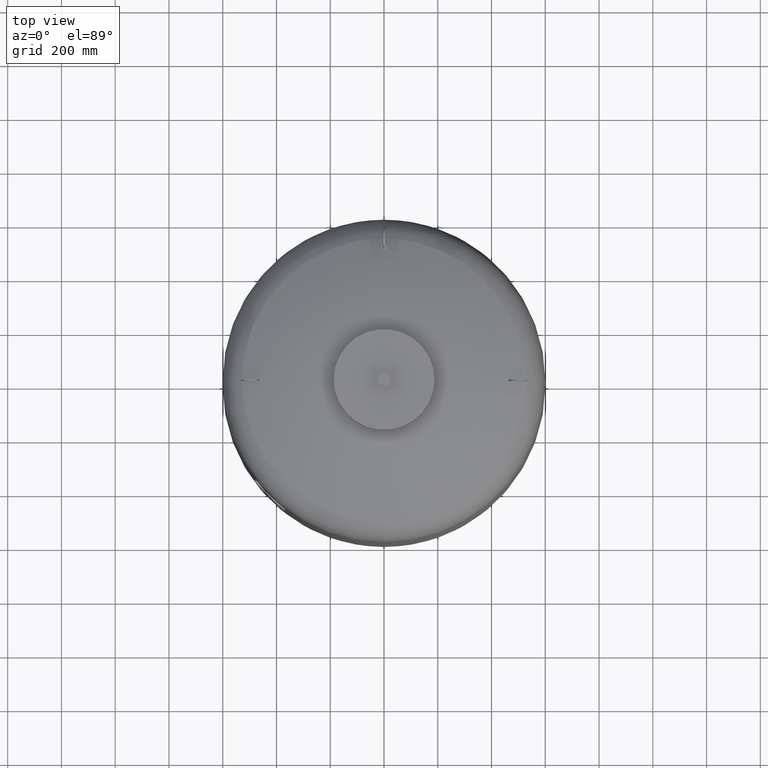
[diagram: clean part render]
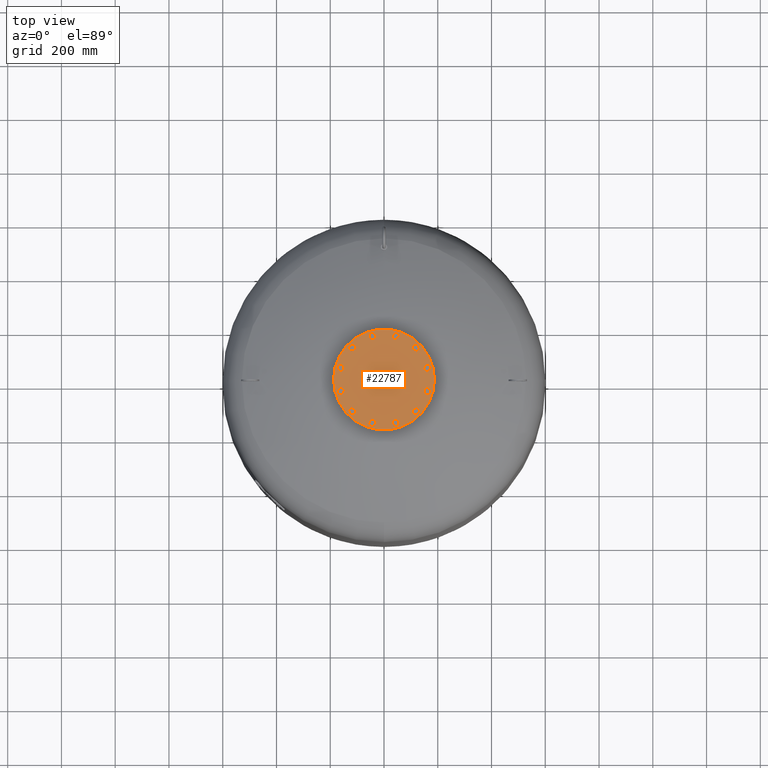
[diagram: same view with one face highlighted and labeled with its STEP entity id]
A machine part, top view. The second image highlights one B-rep face of the part: STEP entity #22787.
In plain terms, the highlighted planar face has unit normal (0, 0, 1).
Its self-contained STEP definition (entity closure, byte-faithful):
#15025=CARTESIAN_POINT('',(-187.500000000000000,0.0,2020.0));
#15026=VERTEX_POINT('',#15025);
#15042=CARTESIAN_POINT('',(187.500000000000000,-2.296137E-014,2020.0));
#15043=VERTEX_POINT('',#15042);
#15050=CARTESIAN_POINT('',(0.0,0.0,2020.0));
#15051=DIRECTION('',(0.0,0.0,-1.0));
#15052=DIRECTION('',(-1.0,0.0,0.0));
#15053=AXIS2_PLACEMENT_3D('',#15050,#15051,#15052);
#15054=CIRCLE('',#15053,187.500000000000000);
#15055=EDGE_CURVE('',#15043,#15026,#15054,.T.);
#20281=CARTESIAN_POINT('',(157.729139400922860,30.104983413641008,2020.0));
#20282=VERTEX_POINT('',#20281);
#20283=CARTESIAN_POINT('',(148.288440171855850,40.247625971983268,2020.0));
#20284=VERTEX_POINT('',#20283);
#20285=CARTESIAN_POINT('',(157.729139400922860,30.104983413641008,2020.0));
#20286=DIRECTION('',(-0.681323780155013,0.731982176419128,0.0));
#20287=VECTOR('',#20286,13.856406460551090);
#20288=LINE('',#20285,#20287);
#20289=EDGE_CURVE('',#20282,#20284,#20288,.T.);
#20321=CARTESIAN_POINT('',(171.233275132485970,33.209547496330110,2020.0));
#20322=VERTEX_POINT('',#20321);
#20323=CARTESIAN_POINT('',(171.233275132485970,33.209547496330110,2020.0));
#20324=DIRECTION('',(-0.974577049973894,-0.224052613607123,0.0));
#20325=VECTOR('',#20324,13.856406460551119);
#20326=LINE('',#20323,#20325);
#20327=EDGE_CURVE('',#20322,#20282,#20326,.T.);
#20352=CARTESIAN_POINT('',(175.296711634982050,46.456754137361422,2020.0));
#20353=VERTEX_POINT('',#20352);
#20354=CARTESIAN_POINT('',(175.296711634982050,46.456754137361422,2020.0));
#20355=DIRECTION('',(-0.293253269818881,-0.956034790026249,0.0));
#20356=VECTOR('',#20355,13.856406460551076);
#20357=LINE('',#20354,#20356);
#20358=EDGE_CURVE('',#20353,#20322,#20357,.T.);
#20383=CARTESIAN_POINT('',(152.351876674351930,53.494832613014587,2020.0));
#20384=VERTEX_POINT('',#20383);
#20385=CARTESIAN_POINT('',(148.288440171855850,40.247625971983268,2020.0));
#20386=DIRECTION('',(0.293253269818881,0.956034790026249,0.0));
#20387=VECTOR('',#20386,13.856406460551083);
#20388=LINE('',#20385,#20387);
#20389=EDGE_CURVE('',#20284,#20384,#20388,.T.);
#20414=CARTESIAN_POINT('',(165.856012405915040,56.599396695703689,2020.0));
#20415=VERTEX_POINT('',#20414);
#20416=CARTESIAN_POINT('',(152.351876674351930,53.494832613014587,2020.0));
#20417=DIRECTION('',(0.974577049973894,0.224052613607123,0.0));
#20418=VECTOR('',#20417,13.856406460551119);
#20419=LINE('',#20416,#20418);
#20420=EDGE_CURVE('',#20384,#20415,#20419,.T.);
#20445=CARTESIAN_POINT('',(165.856012405915040,56.599396695703689,2020.0));
#20446=DIRECTION('',(0.681323780155012,-0.731982176419129,0.0));
#20447=VECTOR('',#20446,13.856406460551096);
#20448=LINE('',#20445,#20447);
#20449=EDGE_CURVE('',#20415,#20353,#20448,.T.);
#20481=CARTESIAN_POINT('',(121.544949931435720,104.936250117183760,2020.0));
#20482=VERTEX_POINT('',#20481);
#20483=CARTESIAN_POINT('',(108.297743290404380,108.999686619679820,2020.0));
#20484=VERTEX_POINT('',#20483);
#20485=CARTESIAN_POINT('',(121.544949931435720,104.936250117183760,2020.0));
#20486=DIRECTION('',(-0.956034790026250,0.293253269818880,0.0));
#20487=VECTOR('',#20486,13.856406460551101);
#20488=LINE('',#20485,#20487);
#20489=EDGE_CURVE('',#20482,#20484,#20488,.T.);
#20521=CARTESIAN_POINT('',(131.687592489777960,114.376949346250780,2020.0));
#20522=VERTEX_POINT('',#20521);
#20523=CARTESIAN_POINT('',(131.687592489777960,114.376949346250780,2020.0));
#20524=DIRECTION('',(-0.731982176419127,-0.681323780155014,0.0));
#20525=VECTOR('',#20524,13.856406460551080);
#20526=LINE('',#20523,#20525);
#20527=EDGE_CURVE('',#20522,#20482,#20526,.T.);
#20552=CARTESIAN_POINT('',(128.583028407088880,127.881085077813880,2020.0));
#20553=VERTEX_POINT('',#20552);
#20554=CARTESIAN_POINT('',(128.583028407088880,127.881085077813880,2020.0));
#20555=DIRECTION('',(0.224052613607122,-0.974577049973894,0.0));
#20556=VECTOR('',#20555,13.856406460551099);
#20557=LINE('',#20554,#20556);
#20558=EDGE_CURVE('',#20553,#20522,#20557,.T.);
#20583=CARTESIAN_POINT('',(105.193179207715300,122.503822351242900,2020.0));
#20584=VERTEX_POINT('',#20583);
#20585=CARTESIAN_POINT('',(108.297743290404380,108.999686619679820,2020.0));
#20586=DIRECTION('',(-0.224052613607122,0.974577049973894,0.0));
#20587=VECTOR('',#20586,13.856406460551087);
#20588=LINE('',#20585,#20587);
#20589=EDGE_CURVE('',#20484,#20584,#20588,.T.);
#20614=CARTESIAN_POINT('',(115.335821766057560,131.944521580309950,2020.0));
#20615=VERTEX_POINT('',#20614);
#20616=CARTESIAN_POINT('',(105.193179207715300,122.503822351242900,2020.0));
#20617=DIRECTION('',(0.731982176419127,0.681323780155014,0.0));
#20618=VECTOR('',#20617,13.856406460551121);
#20619=LINE('',#20616,#20618);
#20620=EDGE_CURVE('',#20584,#20615,#20619,.T.);
#20645=CARTESIAN_POINT('',(115.335821766057560,131.944521580309950,2020.0));
#20646=DIRECTION('',(0.956034790026249,-0.293253269818881,0.0));
#20647=VECTOR('',#20646,13.856406460551076);
#20648=LINE('',#20645,#20647);
#20649=EDGE_CURVE('',#20615,#20553,#20648,.T.);
#20681=CARTESIAN_POINT('',(52.792889283739193,151.649933345076730,2020.0));
#20682=VERTEX_POINT('',#20681);
#20683=CARTESIAN_POINT('',(39.288753552176118,148.545369262387680,2020.0));
#20684=VERTEX_POINT('',#20683);
#20685=CARTESIAN_POINT('',(52.792889283739193,151.649933345076730,2020.0));
#20686=DIRECTION('',(-0.974577049973894,-0.224052613607120,0.0));
#20687=VECTOR('',#20686,13.856406460551073);
#20688=LINE('',#20685,#20687);
#20689=EDGE_CURVE('',#20682,#20684,#20688,.T.);
#20721=CARTESIAN_POINT('',(56.856325786235274,164.897139986108100,2020.0));
#20722=VERTEX_POINT('',#20721);
#20723=CARTESIAN_POINT('',(56.856325786235274,164.897139986108100,2020.0));
#20724=DIRECTION('',(-0.293253269818881,-0.956034790026249,0.0));
#20725=VECTOR('',#20724,13.856406460551133);
#20726=LINE('',#20723,#20725);
#20727=EDGE_CURVE('',#20722,#20682,#20726,.T.);
#20752=CARTESIAN_POINT('',(47.415626557168267,175.039782544450330,2020.0));
#20753=VERTEX_POINT('',#20752);
#20754=CARTESIAN_POINT('',(47.415626557168267,175.039782544450330,2020.0));
#20755=DIRECTION('',(0.681323780155014,-0.731982176419128,0.0));
#20756=VECTOR('',#20755,13.856406460551069);
#20757=LINE('',#20754,#20756);
#20758=EDGE_CURVE('',#20753,#20722,#20757,.T.);
#20783=CARTESIAN_POINT('',(29.848054323109103,158.688011820729910,2020.0));
#20784=VERTEX_POINT('',#20783);
#20785=CARTESIAN_POINT('',(39.288753552176118,148.545369262387680,2020.0));
#20786=DIRECTION('',(-0.681323780155014,0.731982176419127,0.0));
#20787=VECTOR('',#20786,13.856406460551076);
#20788=LINE('',#20785,#20787);
#20789=EDGE_CURVE('',#20684,#20784,#20788,.T.);
#20814=CARTESIAN_POINT('',(33.911490825605156,171.935218461761250,2020.0));
#20815=VERTEX_POINT('',#20814);
#20816=CARTESIAN_POINT('',(29.848054323109103,158.688011820729910,2020.0));
#20817=DIRECTION('',(0.293253269818879,0.956034790026250,0.0));
#20818=VECTOR('',#20817,13.856406460551097);
#20819=LINE('',#20816,#20818);
#20820=EDGE_CURVE('',#20784,#20815,#20819,.T.);
#20845=CARTESIAN_POINT('',(33.911490825605156,171.935218461761250,2020.0));
#20846=DIRECTION('',(0.974577049973894,0.224052613607121,0.0));
#20847=VECTOR('',#20846,13.856406460551113);
#20848=LINE('',#20845,#20847);
#20849=EDGE_CURVE('',#20815,#20753,#20848,.T.);
#20881=CARTESIAN_POINT('',(-30.104983413641008,157.729139400922860,2020.0));
#20882=VERTEX_POINT('',#20881);
#20883=CARTESIAN_POINT('',(-40.247625971983268,148.288440171855850,2020.0));
#20884=VERTEX_POINT('',#20883);
#20885=CARTESIAN_POINT('',(-30.104983413641008,157.729139400922860,2020.0));
#20886=DIRECTION('',(-0.731982176419128,-0.681323780155013,0.0));
#20887=VECTOR('',#20886,13.856406460551090);
#20888=LINE('',#20885,#20887);
#20889=EDGE_CURVE('',#20882,#20884,#20888,.T.);
#20921=CARTESIAN_POINT('',(-33.209547496330110,171.233275132485970,2020.0));
#20922=VERTEX_POINT('',#20921);
#20923=CARTESIAN_POINT('',(-33.209547496330110,171.233275132485970,2020.0));
#20924=DIRECTION('',(0.224052613607123,-0.974577049973894,0.0));
#20925=VECTOR('',#20924,13.856406460551119);
#20926=LINE('',#20923,#20925);
#20927=EDGE_CURVE('',#20922,#20882,#20926,.T.);
#20952=CARTESIAN_POINT('',(-46.456754137361422,175.296711634982050,2020.0));
#20953=VERTEX_POINT('',#20952);
#20954=CARTESIAN_POINT('',(-46.456754137361422,175.296711634982050,2020.0));
#20955=DIRECTION('',(0.956034790026249,-0.293253269818881,0.0));
#20956=VECTOR('',#20955,13.856406460551076);
#20957=LINE('',#20954,#20956);
#20958=EDGE_CURVE('',#20953,#20922,#20957,.T.);
#20983=CARTESIAN_POINT('',(-53.494832613014587,152.351876674351930,2020.0));
#20984=VERTEX_POINT('',#20983);
#20985=CARTESIAN_POINT('',(-40.247625971983268,148.288440171855850,2020.0));
#20986=DIRECTION('',(-0.956034790026249,0.293253269818881,0.0));
#20987=VECTOR('',#20986,13.856406460551083);
#20988=LINE('',#20985,#20987);
#20989=EDGE_CURVE('',#20884,#20984,#20988,.T.);
#21014=CARTESIAN_POINT('',(-56.599396695703689,165.856012405915040,2020.0));
#21015=VERTEX_POINT('',#21014);
#21016=CARTESIAN_POINT('',(-53.494832613014587,152.351876674351930,2020.0));
#21017=DIRECTION('',(-0.224052613607123,0.974577049973894,0.0));
#21018=VECTOR('',#21017,13.856406460551119);
#21019=LINE('',#21016,#21018);
#21020=EDGE_CURVE('',#20984,#21015,#21019,.T.);
#21045=CARTESIAN_POINT('',(-56.599396695703689,165.856012405915040,2020.0));
#21046=DIRECTION('',(0.731982176419129,0.681323780155012,0.0));
#21047=VECTOR('',#21046,13.856406460551096);
#21048=LINE('',#21045,#21047);
#21049=EDGE_CURVE('',#21015,#20953,#21048,.T.);
#21081=CARTESIAN_POINT('',(-104.936250117183700,121.544949931435750,2020.0));
#21082=VERTEX_POINT('',#21081);
#21083=CARTESIAN_POINT('',(-108.999686619679760,108.297743290404440,2020.0));
#21084=VERTEX_POINT('',#21083);
#21085=CARTESIAN_POINT('',(-104.936250117183700,121.544949931435750,2020.0));
#21086=DIRECTION('',(-0.293253269818880,-0.956034790026249,0.0));
#21087=VECTOR('',#21086,13.856406460551073);
#21088=LINE('',#21085,#21087);
#21089=EDGE_CURVE('',#21082,#21084,#21088,.T.);
#21121=CARTESIAN_POINT('',(-114.376949346250730,131.687592489778010,2020.0));
#21122=VERTEX_POINT('',#21121);
#21123=CARTESIAN_POINT('',(-114.376949346250730,131.687592489778010,2020.0));
#21124=DIRECTION('',(0.681323780155013,-0.731982176419128,0.0));
#21125=VECTOR('',#21124,13.856406460551101);
#21126=LINE('',#21123,#21125);
#21127=EDGE_CURVE('',#21122,#21082,#21126,.T.);
#21152=CARTESIAN_POINT('',(-127.881085077813810,128.583028407088930,2020.0));
#21153=VERTEX_POINT('',#21152);
#21154=CARTESIAN_POINT('',(-127.881085077813810,128.583028407088930,2020.0));
#21155=DIRECTION('',(0.974577049973894,0.224052613607122,0.0));
#21156=VECTOR('',#21155,13.856406460551087);
#21157=LINE('',#21154,#21156);
#21158=EDGE_CURVE('',#21153,#21122,#21157,.T.);
#21183=CARTESIAN_POINT('',(-122.503822351242850,105.193179207715360,2020.0));
#21184=VERTEX_POINT('',#21183);
#21185=CARTESIAN_POINT('',(-108.999686619679760,108.297743290404440,2020.0));
#21186=DIRECTION('',(-0.974577049973894,-0.224052613607122,0.0));
#21187=VECTOR('',#21186,13.856406460551087);
#21188=LINE('',#21185,#21187);
#21189=EDGE_CURVE('',#21084,#21184,#21188,.T.);
#21214=CARTESIAN_POINT('',(-131.944521580309900,115.335821766057620,2020.0));
#21215=VERTEX_POINT('',#21214);
#21216=CARTESIAN_POINT('',(-122.503822351242850,105.193179207715360,2020.0));
#21217=DIRECTION('',(-0.681323780155014,0.731982176419127,0.0));
#21218=VECTOR('',#21217,13.856406460551121);
#21219=LINE('',#21216,#21218);
#21220=EDGE_CURVE('',#21184,#21215,#21219,.T.);
#21245=CARTESIAN_POINT('',(-131.944521580309900,115.335821766057620,2020.0));
#21246=DIRECTION('',(0.293253269818882,0.956034790026249,0.0));
#21247=VECTOR('',#21246,13.856406460551081);
#21248=LINE('',#21245,#21247);
#21249=EDGE_CURVE('',#21215,#21153,#21248,.T.);
#21281=CARTESIAN_POINT('',(-151.649933345076730,52.792889283739214,2020.0));
#21282=VERTEX_POINT('',#21281);
#21283=CARTESIAN_POINT('',(-148.545369262387650,39.288753552176125,2020.0));
#21284=VERTEX_POINT('',#21283);
#21285=CARTESIAN_POINT('',(-151.649933345076730,52.792889283739214,2020.0));
#21286=DIRECTION('',(0.224052613607122,-0.974577049973894,0.0));
#21287=VECTOR('',#21286,13.856406460551092);
#21288=LINE('',#21285,#21287);
#21289=EDGE_CURVE('',#21282,#21284,#21288,.T.);
#21321=CARTESIAN_POINT('',(-164.897139986108100,56.856325786235296,2020.0));
#21322=VERTEX_POINT('',#21321);
#21323=CARTESIAN_POINT('',(-164.897139986108100,56.856325786235296,2020.0));
#21324=DIRECTION('',(0.956034790026249,-0.293253269818881,0.0));
#21325=VECTOR('',#21324,13.856406460551133);
#21326=LINE('',#21323,#21325);
#21327=EDGE_CURVE('',#21322,#21282,#21326,.T.);
#21352=CARTESIAN_POINT('',(-175.039782544450300,47.415626557168260,2020.0));
#21353=VERTEX_POINT('',#21352);
#21354=CARTESIAN_POINT('',(-175.039782544450300,47.415626557168260,2020.0));
#21355=DIRECTION('',(0.731982176419126,0.681323780155016,0.0));
#21356=VECTOR('',#21355,13.856406460551069);
#21357=LINE('',#21354,#21356);
#21358=EDGE_CURVE('',#21353,#21322,#21357,.T.);
#21383=CARTESIAN_POINT('',(-158.688011820729910,29.848054323109110,2020.0));
#21384=VERTEX_POINT('',#21383);
#21385=CARTESIAN_POINT('',(-148.545369262387650,39.288753552176125,2020.0));
#21386=DIRECTION('',(-0.731982176419128,-0.681323780155013,0.0));
#21387=VECTOR('',#21386,13.856406460551096);
#21388=LINE('',#21385,#21387);
#21389=EDGE_CURVE('',#21284,#21384,#21388,.T.);
#21414=CARTESIAN_POINT('',(-171.935218461761250,33.911490825605171,2020.0));
#21415=VERTEX_POINT('',#21414);
#21416=CARTESIAN_POINT('',(-158.688011820729910,29.848054323109110,2020.0));
#21417=DIRECTION('',(-0.956034790026250,0.293253269818880,0.0));
#21418=VECTOR('',#21417,13.856406460551101);
#21419=LINE('',#21416,#21418);
#21420=EDGE_CURVE('',#21384,#21415,#21419,.T.);
#21445=CARTESIAN_POINT('',(-171.935218461761250,33.911490825605171,2020.0));
#21446=DIRECTION('',(-0.224052613607120,0.974577049973894,0.0));
#21447=VECTOR('',#21446,13.856406460551087);
#21448=LINE('',#21445,#21447);
#21449=EDGE_CURVE('',#21415,#21353,#21448,.T.);
#21481=CARTESIAN_POINT('',(-157.729139400922860,-30.104983413640987,2020.0));
#21482=VERTEX_POINT('',#21481);
#21483=CARTESIAN_POINT('',(-148.288440171855850,-40.247625971983247,2020.0));
#21484=VERTEX_POINT('',#21483);
#21485=CARTESIAN_POINT('',(-157.729139400922860,-30.104983413640987,2020.0));
#21486=DIRECTION('',(0.681323780155013,-0.731982176419128,0.0));
#21487=VECTOR('',#21486,13.856406460551090);
#21488=LINE('',#21485,#21487);
#21489=EDGE_CURVE('',#21482,#21484,#21488,.T.);
#21521=CARTESIAN_POINT('',(-171.233275132486000,-33.209547496330096,2020.0));
#21522=VERTEX_POINT('',#21521);
#21523=CARTESIAN_POINT('',(-171.233275132486000,-33.209547496330096,2020.0));
#21524=DIRECTION('',(0.974577049973894,0.224052613607123,0.0));
#21525=VECTOR('',#21524,13.856406460551147);
#21526=LINE('',#21523,#21525);
#21527=EDGE_CURVE('',#21522,#21482,#21526,.T.);
#21552=CARTESIAN_POINT('',(-175.296711634982050,-46.456754137361401,2020.0));
#21553=VERTEX_POINT('',#21552);
#21554=CARTESIAN_POINT('',(-175.296711634982050,-46.456754137361401,2020.0));
#21555=DIRECTION('',(0.293253269818880,0.956034790026250,0.0));
#21556=VECTOR('',#21555,13.856406460551062);
#21557=LINE('',#21554,#21556);
#21558=EDGE_CURVE('',#21553,#21522,#21557,.T.);
#21583=CARTESIAN_POINT('',(-152.351876674351960,-53.494832613014580,2020.0));
#21584=VERTEX_POINT('',#21583);
#21585=CARTESIAN_POINT('',(-148.288440171855850,-40.247625971983247,2020.0));
#21586=DIRECTION('',(-0.293253269818883,-0.956034790026249,0.0));
#21587=VECTOR('',#21586,13.856406460551106);
#21588=LINE('',#21585,#21587);
#21589=EDGE_CURVE('',#21484,#21584,#21588,.T.);
#21614=CARTESIAN_POINT('',(-165.856012405915070,-56.599396695703646,2020.0));
#21615=VERTEX_POINT('',#21614);
#21616=CARTESIAN_POINT('',(-152.351876674351960,-53.494832613014580,2020.0));
#21617=DIRECTION('',(-0.974577049973894,-0.224052613607121,0.0));
#21618=VECTOR('',#21617,13.856406460551110);
#21619=LINE('',#21616,#21618);
#21620=EDGE_CURVE('',#21584,#21615,#21619,.T.);
#21645=CARTESIAN_POINT('',(-165.856012405915070,-56.599396695703646,2020.0));
#21646=DIRECTION('',(-0.681323780155012,0.731982176419129,0.0));
#21647=VECTOR('',#21646,13.856406460551062);
#21648=LINE('',#21645,#21647);
#21649=EDGE_CURVE('',#21615,#21553,#21648,.T.);
#21681=CARTESIAN_POINT('',(-121.544949931435750,-104.936250117183680,2020.0));
#21682=VERTEX_POINT('',#21681);
#21683=CARTESIAN_POINT('',(-108.297743290404440,-108.999686619679760,2020.0));
#21684=VERTEX_POINT('',#21683);
#21685=CARTESIAN_POINT('',(-121.544949931435750,-104.936250117183680,2020.0));
#21686=DIRECTION('',(0.956034790026249,-0.293253269818882,0.0));
#21687=VECTOR('',#21686,13.856406460551081);
#21688=LINE('',#21685,#21687);
#21689=EDGE_CURVE('',#21682,#21684,#21688,.T.);
#21721=CARTESIAN_POINT('',(-131.687592489778010,-114.376949346250730,2020.0));
#21722=VERTEX_POINT('',#21721);
#21723=CARTESIAN_POINT('',(-131.687592489778010,-114.376949346250730,2020.0));
#21724=DIRECTION('',(0.731982176419127,0.681323780155014,0.0));
#21725=VECTOR('',#21724,13.856406460551121);
#21726=LINE('',#21723,#21725);
#21727=EDGE_CURVE('',#21722,#21682,#21726,.T.);
#21752=CARTESIAN_POINT('',(-128.583028407088930,-127.881085077813790,2020.0));
#21753=VERTEX_POINT('',#21752);
#21754=CARTESIAN_POINT('',(-128.583028407088930,-127.881085077813790,2020.0));
#21755=DIRECTION('',(-0.224052613607122,0.974577049973894,0.0));
#21756=VECTOR('',#21755,13.856406460551071);
#21757=LINE('',#21754,#21756);
#21758=EDGE_CURVE('',#21753,#21722,#21757,.T.);
#21783=CARTESIAN_POINT('',(-105.193179207715360,-122.503822351242850,2020.0));
#21784=VERTEX_POINT('',#21783);
#21785=CARTESIAN_POINT('',(-108.297743290404440,-108.999686619679760,2020.0));
#21786=DIRECTION('',(0.224052613607122,-0.974577049973894,0.0));
#21787=VECTOR('',#21786,13.856406460551087);
#21788=LINE('',#21785,#21787);
#21789=EDGE_CURVE('',#21684,#21784,#21788,.T.);
#21814=CARTESIAN_POINT('',(-115.335821766057620,-131.944521580309900,2020.0));
#21815=VERTEX_POINT('',#21814);
#21816=CARTESIAN_POINT('',(-105.193179207715360,-122.503822351242850,2020.0));
#21817=DIRECTION('',(-0.731982176419127,-0.681323780155014,0.0));
#21818=VECTOR('',#21817,13.856406460551121);
#21819=LINE('',#21816,#21818);
#21820=EDGE_CURVE('',#21784,#21815,#21819,.T.);
#21845=CARTESIAN_POINT('',(-115.335821766057620,-131.944521580309900,2020.0));
#21846=DIRECTION('',(-0.956034790026249,0.293253269818883,0.0));
#21847=VECTOR('',#21846,13.856406460551085);
#21848=LINE('',#21845,#21847);
#21849=EDGE_CURVE('',#21815,#21753,#21848,.T.);
#21881=CARTESIAN_POINT('',(-52.792889283739228,-151.649933345076730,2020.0));
#21882=VERTEX_POINT('',#21881);
#21883=CARTESIAN_POINT('',(-39.288753552176132,-148.545369262387680,2020.0));
#21884=VERTEX_POINT('',#21883);
#21885=CARTESIAN_POINT('',(-52.792889283739228,-151.649933345076730,2020.0));
#21886=DIRECTION('',(0.974577049973894,0.224052613607120,0.0));
#21887=VECTOR('',#21886,13.856406460551094);
#21888=LINE('',#21885,#21887);
#21889=EDGE_CURVE('',#21882,#21884,#21888,.T.);
#21921=CARTESIAN_POINT('',(-56.856325786235296,-164.897139986108100,2020.0));
#21922=VERTEX_POINT('',#21921);
#21923=CARTESIAN_POINT('',(-56.856325786235296,-164.897139986108100,2020.0));
#21924=DIRECTION('',(0.293253269818880,0.956034790026250,0.0));
#21925=VECTOR('',#21924,13.856406460551129);
#21926=LINE('',#21923,#21925);
#21927=EDGE_CURVE('',#21922,#21882,#21926,.T.);
#21952=CARTESIAN_POINT('',(-47.415626557168281,-175.039782544450300,2020.0));
#21953=VERTEX_POINT('',#21952);
#21954=CARTESIAN_POINT('',(-47.415626557168281,-175.039782544450300,2020.0));
#21955=DIRECTION('',(-0.681323780155015,0.731982176419126,0.0));
#21956=VECTOR('',#21955,13.856406460551055);
#21957=LINE('',#21954,#21956);
#21958=EDGE_CURVE('',#21953,#21922,#21957,.T.);
#21983=CARTESIAN_POINT('',(-29.848054323109121,-158.688011820729910,2020.0));
#21984=VERTEX_POINT('',#21983);
#21985=CARTESIAN_POINT('',(-39.288753552176132,-148.545369262387680,2020.0));
#21986=DIRECTION('',(0.681323780155014,-0.731982176419127,0.0));
#21987=VECTOR('',#21986,13.856406460551073);
#21988=LINE('',#21985,#21987);
#21989=EDGE_CURVE('',#21884,#21984,#21988,.T.);
#22014=CARTESIAN_POINT('',(-33.911490825605199,-171.935218461761280,2020.0));
#22015=VERTEX_POINT('',#22014);
#22016=CARTESIAN_POINT('',(-29.848054323109121,-158.688011820729910,2020.0));
#22017=DIRECTION('',(-0.293253269818880,-0.956034790026249,0.0));
#22018=VECTOR('',#22017,13.856406460551133);
#22019=LINE('',#22016,#22018);
#22020=EDGE_CURVE('',#21984,#22015,#22019,.T.);
#22045=CARTESIAN_POINT('',(-33.911490825605199,-171.935218461761280,2020.0));
#22046=DIRECTION('',(-0.974577049973895,-0.224052613607118,0.0));
#22047=VECTOR('',#22046,13.856406460551074);
#22048=LINE('',#22045,#22047);
#22049=EDGE_CURVE('',#22015,#21953,#22048,.T.);
#22081=CARTESIAN_POINT('',(30.104983413640952,-157.729139400922890,2020.0));
#22082=VERTEX_POINT('',#22081);
#22083=CARTESIAN_POINT('',(40.247625971983211,-148.288440171855880,2020.0));
#22084=VERTEX_POINT('',#22083);
#22085=CARTESIAN_POINT('',(30.104983413640952,-157.729139400922890,2020.0));
#22086=DIRECTION('',(0.731982176419128,0.681323780155013,0.0));
#22087=VECTOR('',#22086,13.856406460551090);
#22088=LINE('',#22085,#22087);
#22089=EDGE_CURVE('',#22082,#22084,#22088,.T.);
#22121=CARTESIAN_POINT('',(33.209547496330039,-171.233275132486000,2020.0));
#22122=VERTEX_POINT('',#22121);
#22123=CARTESIAN_POINT('',(33.209547496330039,-171.233275132486000,2020.0));
#22124=DIRECTION('',(-0.224052613607122,0.974577049973894,0.0));
#22125=VECTOR('',#22124,13.856406460551115);
#22126=LINE('',#22123,#22125);
#22127=EDGE_CURVE('',#22122,#22082,#22126,.T.);
#22152=CARTESIAN_POINT('',(46.456754137361351,-175.296711634982070,2020.0));
#22153=VERTEX_POINT('',#22152);
#22154=CARTESIAN_POINT('',(46.456754137361351,-175.296711634982070,2020.0));
#22155=DIRECTION('',(-0.956034790026249,0.293253269818881,0.0));
#22156=VECTOR('',#22155,13.856406460551076);
#22157=LINE('',#22154,#22156);
#22158=EDGE_CURVE('',#22153,#22122,#22157,.T.);
#22183=CARTESIAN_POINT('',(53.494832613014523,-152.351876674351960,2020.0));
#22184=VERTEX_POINT('',#22183);
#22185=CARTESIAN_POINT('',(40.247625971983211,-148.288440171855880,2020.0));
#22186=DIRECTION('',(0.956034790026249,-0.293253269818881,0.0));
#22187=VECTOR('',#22186,13.856406460551076);
#22188=LINE('',#22185,#22187);
#22189=EDGE_CURVE('',#22084,#22184,#22188,.T.);
#22214=CARTESIAN_POINT('',(56.599396695703625,-165.856012405915070,2020.0));
#22215=VERTEX_POINT('',#22214);
#22216=CARTESIAN_POINT('',(53.494832613014523,-152.351876674351960,2020.0));
#22217=DIRECTION('',(0.224052613607123,-0.974577049973894,0.0));
#22218=VECTOR('',#22217,13.856406460551119);
#22219=LINE('',#22216,#22218);
#22220=EDGE_CURVE('',#22184,#22215,#22219,.T.);
#22245=CARTESIAN_POINT('',(56.599396695703625,-165.856012405915070,2020.0));
#22246=DIRECTION('',(-0.731982176419129,-0.681323780155012,0.0));
#22247=VECTOR('',#22246,13.856406460551101);
#22248=LINE('',#22245,#22247);
#22249=EDGE_CURVE('',#22215,#22153,#22248,.T.);
#22281=CARTESIAN_POINT('',(104.936250117183660,-121.544949931435800,2020.0));
#22282=VERTEX_POINT('',#22281);
#22283=CARTESIAN_POINT('',(108.999686619679750,-108.297743290404470,2020.0));
#22284=VERTEX_POINT('',#22283);
#22285=CARTESIAN_POINT('',(104.936250117183660,-121.544949931435800,2020.0));
#22286=DIRECTION('',(0.293253269818882,0.956034790026249,0.0));
#22287=VECTOR('',#22286,13.856406460551094);
#22288=LINE('',#22285,#22287);
#22289=EDGE_CURVE('',#22282,#22284,#22288,.T.);
#22321=CARTESIAN_POINT('',(114.376949346250710,-131.687592489778040,2020.0));
#22322=VERTEX_POINT('',#22321);
#22323=CARTESIAN_POINT('',(114.376949346250710,-131.687592489778040,2020.0));
#22324=DIRECTION('',(-0.681323780155015,0.731982176419126,0.0));
#22325=VECTOR('',#22324,13.856406460551110);
#22326=LINE('',#22323,#22325);
#22327=EDGE_CURVE('',#22322,#22282,#22326,.T.);
#22352=CARTESIAN_POINT('',(127.881085077813760,-128.583028407088960,2020.0));
#22353=VERTEX_POINT('',#22352);
#22354=CARTESIAN_POINT('',(127.881085077813760,-128.583028407088960,2020.0));
#22355=DIRECTION('',(-0.974577049973894,-0.224052613607122,0.0));
#22356=VECTOR('',#22355,13.856406460551058);
#22357=LINE('',#22354,#22356);
#22358=EDGE_CURVE('',#22353,#22322,#22357,.T.);
#22383=CARTESIAN_POINT('',(122.503822351242830,-105.193179207715390,2020.0));
#22384=VERTEX_POINT('',#22383);
#22385=CARTESIAN_POINT('',(108.999686619679750,-108.297743290404470,2020.0));
#22386=DIRECTION('',(0.974577049973894,0.224052613607122,0.0));
#22387=VECTOR('',#22386,13.856406460551087);
#22388=LINE('',#22385,#22387);
#22389=EDGE_CURVE('',#22284,#22384,#22388,.T.);
#22414=CARTESIAN_POINT('',(131.944521580309870,-115.335821766057650,2020.0));
#22415=VERTEX_POINT('',#22414);
#22416=CARTESIAN_POINT('',(122.503822351242830,-105.193179207715390,2020.0));
#22417=DIRECTION('',(0.681323780155014,-0.731982176419127,0.0));
#22418=VECTOR('',#22417,13.856406460551110);
#22419=LINE('',#22416,#22418);
#22420=EDGE_CURVE('',#22384,#22415,#22419,.T.);
#22445=CARTESIAN_POINT('',(131.944521580309870,-115.335821766057650,2020.0));
#22446=DIRECTION('',(-0.293253269818883,-0.956034790026249,0.0));
#22447=VECTOR('',#22446,13.856406460551085);
#22448=LINE('',#22445,#22447);
#22449=EDGE_CURVE('',#22415,#22353,#22448,.T.);
#22481=CARTESIAN_POINT('',(151.649933345076730,-52.792889283739228,2020.0));
#22482=VERTEX_POINT('',#22481);
#22483=CARTESIAN_POINT('',(148.545369262387650,-39.288753552176139,2020.0));
#22484=VERTEX_POINT('',#22483);
#22485=CARTESIAN_POINT('',(151.649933345076730,-52.792889283739228,2020.0));
#22486=DIRECTION('',(-0.224052613607122,0.974577049973894,0.0));
#22487=VECTOR('',#22486,13.856406460551092);
#22488=LINE('',#22485,#22487);
#22489=EDGE_CURVE('',#22482,#22484,#22488,.T.);
#22521=CARTESIAN_POINT('',(164.897139986108070,-56.856325786235303,2020.0));
#22522=VERTEX_POINT('',#22521);
#22523=CARTESIAN_POINT('',(164.897139986108070,-56.856325786235303,2020.0));
#22524=DIRECTION('',(-0.956034790026249,0.293253269818881,0.0));
#22525=VECTOR('',#22524,13.856406460551105);
#22526=LINE('',#22523,#22525);
#22527=EDGE_CURVE('',#22522,#22482,#22526,.T.);
#22552=CARTESIAN_POINT('',(175.039782544450300,-47.415626557168295,2020.0));
#22553=VERTEX_POINT('',#22552);
#22554=CARTESIAN_POINT('',(175.039782544450300,-47.415626557168295,2020.0));
#22555=DIRECTION('',(-0.731982176419128,-0.681323780155014,0.0));
#22556=VECTOR('',#22555,13.856406460551069);
#22557=LINE('',#22554,#22556);
#22558=EDGE_CURVE('',#22553,#22522,#22557,.T.);
#22583=CARTESIAN_POINT('',(158.688011820729910,-29.848054323109132,2020.0));
#22584=VERTEX_POINT('',#22583);
#22585=CARTESIAN_POINT('',(148.545369262387650,-39.288753552176139,2020.0));
#22586=DIRECTION('',(0.731982176419128,0.681323780155013,0.0));
#22587=VECTOR('',#22586,13.856406460551090);
#22588=LINE('',#22585,#22587);
#22589=EDGE_CURVE('',#22484,#22584,#22588,.T.);
#22614=CARTESIAN_POINT('',(171.935218461761250,-33.911490825605206,2020.0));
#22615=VERTEX_POINT('',#22614);
#22616=CARTESIAN_POINT('',(158.688011820729910,-29.848054323109132,2020.0));
#22617=DIRECTION('',(0.956034790026249,-0.293253269818881,0.0));
#22618=VECTOR('',#22617,13.856406460551105);
#22619=LINE('',#22616,#22618);
#22620=EDGE_CURVE('',#22584,#22615,#22619,.T.);
#22645=CARTESIAN_POINT('',(171.935218461761250,-33.911490825605206,2020.0));
#22646=DIRECTION('',(0.224052613607120,-0.974577049973894,0.0));
#22647=VECTOR('',#22646,13.856406460551087);
#22648=LINE('',#22645,#22647);
#22649=EDGE_CURVE('',#22615,#22553,#22648,.T.);
#22676=CARTESIAN_POINT('',(-93.750000000000000,-7.888609E-031,2020.0));
#22677=DIRECTION('',(0.0,0.0,1.0));
#22678=DIRECTION('',(0.0,1.0,0.0));
#22679=AXIS2_PLACEMENT_3D('',#22676,#22677,#22678);
#22680=PLANE('',#22679);
#22681=CARTESIAN_POINT('',(0.0,0.0,2020.0));
#22682=DIRECTION('',(0.0,0.0,-1.0));
#22683=DIRECTION('',(-1.0,0.0,0.0));
#22684=AXIS2_PLACEMENT_3D('',#22681,#22682,#22683);
#22685=CIRCLE('',#22684,187.500000000000000);
#22686=EDGE_CURVE('',#15026,#15043,#22685,.T.);
#22687=ORIENTED_EDGE('',*,*,#22686,.F.);
#22688=ORIENTED_EDGE('',*,*,#15055,.F.);
#22689=EDGE_LOOP('',(#22687,#22688));
#22690=FACE_OUTER_BOUND('',#22689,.T.);
#22691=ORIENTED_EDGE('',*,*,#20289,.T.);
#22692=ORIENTED_EDGE('',*,*,#20389,.T.);
#22693=ORIENTED_EDGE('',*,*,#20420,.T.);
#22694=ORIENTED_EDGE('',*,*,#20449,.T.);
#22695=ORIENTED_EDGE('',*,*,#20358,.T.);
#22696=ORIENTED_EDGE('',*,*,#20327,.T.);
#22697=EDGE_LOOP('',(#22691,#22692,#22693,#22694,#22695,#22696));
#22698=FACE_BOUND('',#22697,.T.);
#22699=ORIENTED_EDGE('',*,*,#20489,.T.);
#22700=ORIENTED_EDGE('',*,*,#20589,.T.);
#22701=ORIENTED_EDGE('',*,*,#20620,.T.);
#22702=ORIENTED_EDGE('',*,*,#20649,.T.);
#22703=ORIENTED_EDGE('',*,*,#20558,.T.);
#22704=ORIENTED_EDGE('',*,*,#20527,.T.);
#22705=EDGE_LOOP('',(#22699,#22700,#22701,#22702,#22703,#22704));
#22706=FACE_BOUND('',#22705,.T.);
#22707=ORIENTED_EDGE('',*,*,#20689,.T.);
#22708=ORIENTED_EDGE('',*,*,#20789,.T.);
#22709=ORIENTED_EDGE('',*,*,#20820,.T.);
#22710=ORIENTED_EDGE('',*,*,#20849,.T.);
#22711=ORIENTED_EDGE('',*,*,#20758,.T.);
#22712=ORIENTED_EDGE('',*,*,#20727,.T.);
#22713=EDGE_LOOP('',(#22707,#22708,#22709,#22710,#22711,#22712));
#22714=FACE_BOUND('',#22713,.T.);
#22715=ORIENTED_EDGE('',*,*,#20889,.T.);
#22716=ORIENTED_EDGE('',*,*,#20989,.T.);
#22717=ORIENTED_EDGE('',*,*,#21020,.T.);
#22718=ORIENTED_EDGE('',*,*,#21049,.T.);
#22719=ORIENTED_EDGE('',*,*,#20958,.T.);
#22720=ORIENTED_EDGE('',*,*,#20927,.T.);
#22721=EDGE_LOOP('',(#22715,#22716,#22717,#22718,#22719,#22720));
#22722=FACE_BOUND('',#22721,.T.);
#22723=ORIENTED_EDGE('',*,*,#21089,.T.);
#22724=ORIENTED_EDGE('',*,*,#21189,.T.);
#22725=ORIENTED_EDGE('',*,*,#21220,.T.);
#22726=ORIENTED_EDGE('',*,*,#21249,.T.);
#22727=ORIENTED_EDGE('',*,*,#21158,.T.);
#22728=ORIENTED_EDGE('',*,*,#21127,.T.);
#22729=EDGE_LOOP('',(#22723,#22724,#22725,#22726,#22727,#22728));
#22730=FACE_BOUND('',#22729,.T.);
#22731=ORIENTED_EDGE('',*,*,#21289,.T.);
#22732=ORIENTED_EDGE('',*,*,#21389,.T.);
#22733=ORIENTED_EDGE('',*,*,#21420,.T.);
#22734=ORIENTED_EDGE('',*,*,#21449,.T.);
#22735=ORIENTED_EDGE('',*,*,#21358,.T.);
#22736=ORIENTED_EDGE('',*,*,#21327,.T.);
#22737=EDGE_LOOP('',(#22731,#22732,#22733,#22734,#22735,#22736));
#22738=FACE_BOUND('',#22737,.T.);
#22739=ORIENTED_EDGE('',*,*,#21489,.T.);
#22740=ORIENTED_EDGE('',*,*,#21589,.T.);
#22741=ORIENTED_EDGE('',*,*,#21620,.T.);
#22742=ORIENTED_EDGE('',*,*,#21649,.T.);
#22743=ORIENTED_EDGE('',*,*,#21558,.T.);
#22744=ORIENTED_EDGE('',*,*,#21527,.T.);
#22745=EDGE_LOOP('',(#22739,#22740,#22741,#22742,#22743,#22744));
#22746=FACE_BOUND('',#22745,.T.);
#22747=ORIENTED_EDGE('',*,*,#21689,.T.);
#22748=ORIENTED_EDGE('',*,*,#21789,.T.);
#22749=ORIENTED_EDGE('',*,*,#21820,.T.);
#22750=ORIENTED_EDGE('',*,*,#21849,.T.);
#22751=ORIENTED_EDGE('',*,*,#21758,.T.);
#22752=ORIENTED_EDGE('',*,*,#21727,.T.);
#22753=EDGE_LOOP('',(#22747,#22748,#22749,#22750,#22751,#22752));
#22754=FACE_BOUND('',#22753,.T.);
#22755=ORIENTED_EDGE('',*,*,#21889,.T.);
#22756=ORIENTED_EDGE('',*,*,#21989,.T.);
#22757=ORIENTED_EDGE('',*,*,#22020,.T.);
#22758=ORIENTED_EDGE('',*,*,#22049,.T.);
#22759=ORIENTED_EDGE('',*,*,#21958,.T.);
#22760=ORIENTED_EDGE('',*,*,#21927,.T.);
#22761=EDGE_LOOP('',(#22755,#22756,#22757,#22758,#22759,#22760));
#22762=FACE_BOUND('',#22761,.T.);
#22763=ORIENTED_EDGE('',*,*,#22089,.T.);
#22764=ORIENTED_EDGE('',*,*,#22189,.T.);
#22765=ORIENTED_EDGE('',*,*,#22220,.T.);
#22766=ORIENTED_EDGE('',*,*,#22249,.T.);
#22767=ORIENTED_EDGE('',*,*,#22158,.T.);
#22768=ORIENTED_EDGE('',*,*,#22127,.T.);
#22769=EDGE_LOOP('',(#22763,#22764,#22765,#22766,#22767,#22768));
#22770=FACE_BOUND('',#22769,.T.);
#22771=ORIENTED_EDGE('',*,*,#22289,.T.);
#22772=ORIENTED_EDGE('',*,*,#22389,.T.);
#22773=ORIENTED_EDGE('',*,*,#22420,.T.);
#22774=ORIENTED_EDGE('',*,*,#22449,.T.);
#22775=ORIENTED_EDGE('',*,*,#22358,.T.);
#22776=ORIENTED_EDGE('',*,*,#22327,.T.);
#22777=EDGE_LOOP('',(#22771,#22772,#22773,#22774,#22775,#22776));
#22778=FACE_BOUND('',#22777,.T.);
#22779=ORIENTED_EDGE('',*,*,#22489,.T.);
#22780=ORIENTED_EDGE('',*,*,#22589,.T.);
#22781=ORIENTED_EDGE('',*,*,#22620,.T.);
#22782=ORIENTED_EDGE('',*,*,#22649,.T.);
#22783=ORIENTED_EDGE('',*,*,#22558,.T.);
#22784=ORIENTED_EDGE('',*,*,#22527,.T.);
#22785=EDGE_LOOP('',(#22779,#22780,#22781,#22782,#22783,#22784));
#22786=FACE_BOUND('',#22785,.T.);
#22787=ADVANCED_FACE('',(#22690,#22698,#22706,#22714,#22722,#22730,#22738,#22746,#22754,#22762,#22770,#22778,#22786),#22680,.T.);